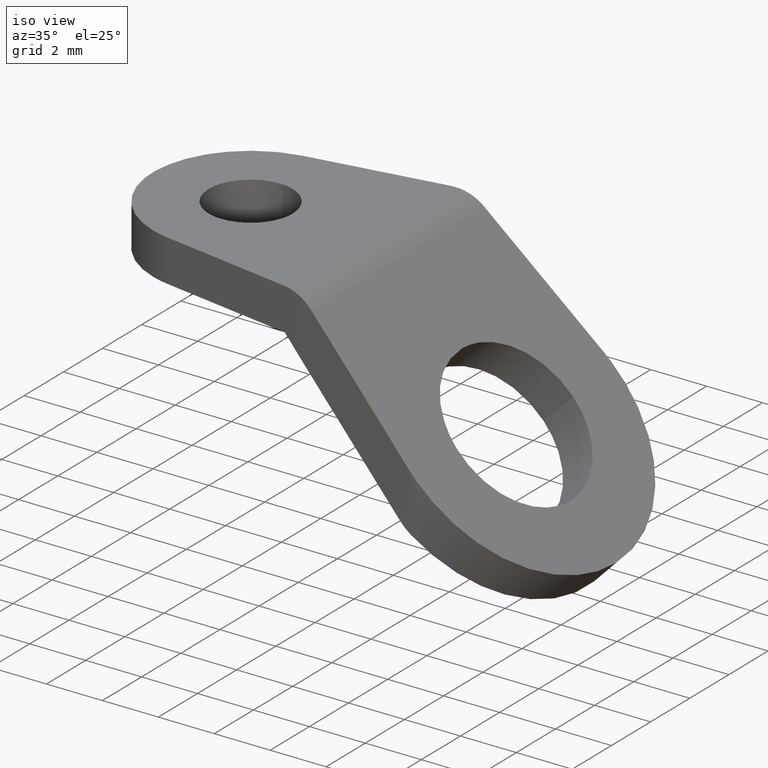
[diagram: clean part render]
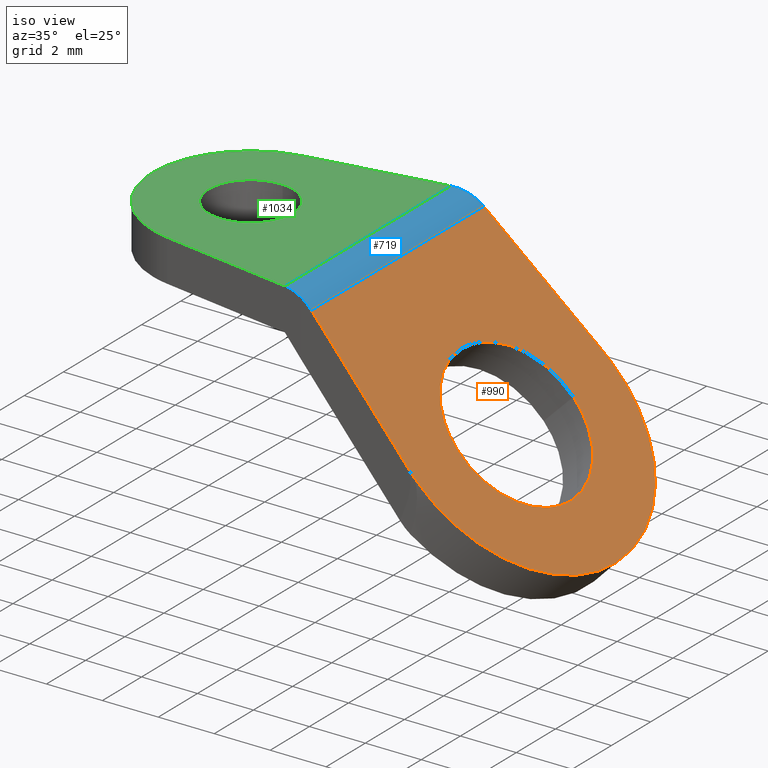
[diagram: same view with three faces highlighted in distinct colors, each labeled with its STEP entity id]
A machine part, iso view with three faces highlighted in distinct colors.
Their STEP definitions:

[orange] entity #990 — the highlighted face is a freeform B-spline surface patch.
#70=CARTESIAN_POINT('',(12.766167338002010,-2.730776364142925,-4.452458822055986));
#71=VERTEX_POINT('',#70);
#72=CARTESIAN_POINT('',(14.940232855966521,0.0,-6.626524060512137));
#73=VERTEX_POINT('',#72);
#74=CARTESIAN_POINT('',(12.766167338002019,-2.730776364142925,-4.452458822055986));
#75=CARTESIAN_POINT('',(12.880525690513572,-2.750000000000001,-4.566817159865109));
#76=CARTESIAN_POINT('',(12.995689082703541,-2.750000000000000,-4.681980537249110));
#77=CARTESIAN_POINT('',(14.940232855966512,-2.750000000000000,-6.626524060512138));
#78=CARTESIAN_POINT('',(14.940232855966521,0.0,-6.626524060512137));
#86=(BOUNDED_CURVE()B_SPLINE_CURVE(2,(#74,#75,#76,#77,#78),.UNSPECIFIED.,.F.,.U.)B_SPLINE_CURVE_WITH_KNOTS((3,2,3),(0.729562560280352,0.750000000000000,1.0),.UNSPECIFIED.)CURVE()GEOMETRIC_REPRESENTATION_ITEM()RATIONAL_B_SPLINE_CURVE((0.956026924250334,0.976056049984825,1.0,0.707106781186548,1.0))REPRESENTATION_ITEM(''));
#87=EDGE_CURVE('',#71,#73,#86,.T.);
#89=CARTESIAN_POINT('',(13.114397691125070,2.744870950733273,-4.800689130408792));
#90=VERTEX_POINT('',#89);
#91=CARTESIAN_POINT('',(14.940232855966521,0.0,-6.626524060512137));
#92=CARTESIAN_POINT('',(14.940232855966514,2.586945621895740,-6.626524060512138));
#93=CARTESIAN_POINT('',(13.114397691125070,2.744870950733273,-4.800689130408792));
#101=(BOUNDED_CURVE()B_SPLINE_CURVE(2,(#91,#92,#93),.UNSPECIFIED.,.F.,.U.)B_SPLINE_CURVE_WITH_KNOTS((3,3),(0.0,0.239333224406841),.UNSPECIFIED.)CURVE()GEOMETRIC_REPRESENTATION_ITEM()RATIONAL_B_SPLINE_CURVE((1.0,0.719603686137912,0.976072603543073))REPRESENTATION_ITEM(''));
#102=EDGE_CURVE('',#73,#90,#101,.T.);
#169=CARTESIAN_POINT('',(11.051145309440560,0.0,-2.737437013986083));
#170=VERTEX_POINT('',#169);
#171=CARTESIAN_POINT('',(11.051145309440560,0.0,-2.737437013986083));
#172=CARTESIAN_POINT('',(11.051145309440562,-2.442481209140467,-2.737437013986082));
#173=CARTESIAN_POINT('',(12.766167338002019,-2.730776364142925,-4.452458822055986));
#181=(BOUNDED_CURVE()B_SPLINE_CURVE(2,(#171,#172,#173),.UNSPECIFIED.,.F.,.U.)B_SPLINE_CURVE_WITH_KNOTS((3,3),(0.500000000000000,0.729562560280352),.UNSPECIFIED.)CURVE()GEOMETRIC_REPRESENTATION_ITEM()RATIONAL_B_SPLINE_CURVE((1.0,0.731050731201722,0.956026924250334))REPRESENTATION_ITEM(''));
#182=EDGE_CURVE('',#170,#71,#181,.T.);
#216=CARTESIAN_POINT('',(13.114397691125070,2.744870950733273,-4.800689130408792));
#217=CARTESIAN_POINT('',(13.055098789698699,2.750000000000000,-4.741390236606266));
#218=CARTESIAN_POINT('',(12.995689082703541,2.750000000000000,-4.681980537249110));
#219=CARTESIAN_POINT('',(11.051145309440562,2.750000000000000,-2.737437013986082));
#220=CARTESIAN_POINT('',(11.051145309440560,0.0,-2.737437013986083));
#228=(BOUNDED_CURVE()B_SPLINE_CURVE(2,(#216,#217,#218,#219,#220),.UNSPECIFIED.,.F.,.U.)B_SPLINE_CURVE_WITH_KNOTS((3,2,3),(0.239333224406841,0.250000000000000,0.500000000000000),.UNSPECIFIED.)CURVE()GEOMETRIC_REPRESENTATION_ITEM()RATIONAL_B_SPLINE_CURVE((0.976072603543073,0.987503095048635,1.0,0.707106781186548,1.0))REPRESENTATION_ITEM(''));
#229=EDGE_CURVE('',#90,#170,#228,.T.);
#471=CARTESIAN_POINT('',(12.869188220313299,-4.996798481802500,-4.555479691122420));
#472=VERTEX_POINT('',#471);
#537=CARTESIAN_POINT('',(12.631954559563800,-4.973469053625591,-4.318246060872835));
#538=VERTEX_POINT('',#537);
#539=CARTESIAN_POINT('',(12.631954559563800,-4.973469053625606,-4.318246060872834));
#540=CARTESIAN_POINT('',(12.750293838427002,-4.990778531242915,-4.436585324521778));
#541=CARTESIAN_POINT('',(12.869188220313291,-4.996798481802498,-4.555479691122424));
#549=(BOUNDED_CURVE()B_SPLINE_CURVE(2,(#539,#540,#541),.UNSPECIFIED.,.F.,.U.)CURVE()GEOMETRIC_REPRESENTATION_ITEM()QUASI_UNIFORM_CURVE()RATIONAL_B_SPLINE_CURVE((1.0,0.999434320666781,1.0))REPRESENTATION_ITEM(''));
#550=EDGE_CURVE('',#538,#472,#549,.T.);
#635=CARTESIAN_POINT('',(8.753047760038342,4.406101641292005,-0.439339760038375));
#636=VERTEX_POINT('',#635);
#637=CARTESIAN_POINT('',(8.753047760038342,-4.406101641292151,-0.439339760038375));
#638=VERTEX_POINT('',#637);
#639=CARTESIAN_POINT('',(8.753047760038342,4.406101641292005,-0.439339760038375));
#640=CARTESIAN_POINT('',(8.753047760038342,-4.406101641292151,-0.439339760038375));
#641=QUASI_UNIFORM_CURVE('',1,(#639,#640),.UNSPECIFIED.,.F.,.U.);
#642=EDGE_CURVE('',#636,#638,#641,.T.);
#831=CARTESIAN_POINT('',(12.869188220313299,4.996798481802500,-4.555479691122420));
#832=VERTEX_POINT('',#831);
#882=CARTESIAN_POINT('',(12.631954558184900,4.973469053423909,-4.318246059493920));
#883=VERTEX_POINT('',#882);
#894=CARTESIAN_POINT('',(12.869188220313291,4.996798481802499,-4.555479691122426));
#895=CARTESIAN_POINT('',(12.750293837733553,4.990778531207805,-4.436585323828322));
#896=CARTESIAN_POINT('',(12.631954558184891,4.973469053423913,-4.318246059493929));
#904=(BOUNDED_CURVE()B_SPLINE_CURVE(2,(#894,#895,#896),.UNSPECIFIED.,.F.,.U.)CURVE()GEOMETRIC_REPRESENTATION_ITEM()QUASI_UNIFORM_CURVE()RATIONAL_B_SPLINE_CURVE((1.0,0.999434320660188,1.0))REPRESENTATION_ITEM(''));
#905=EDGE_CURVE('',#832,#883,#904,.T.);
#916=CARTESIAN_POINT('',(12.631954558184900,4.973469053423909,-4.318246059493920));
#917=CARTESIAN_POINT('',(8.753047760038342,4.406101641292005,-0.439339760038375));
#918=QUASI_UNIFORM_CURVE('',1,(#916,#917),.UNSPECIFIED.,.F.,.U.);
#919=EDGE_CURVE('',#883,#636,#918,.T.);
#945=CARTESIAN_POINT('',(8.753047760038342,-4.406101641292151,-0.439339760038375));
#946=CARTESIAN_POINT('',(12.631954559563800,-4.973469053625591,-4.318246060872835));
#947=QUASI_UNIFORM_CURVE('',1,(#945,#946),.UNSPECIFIED.,.F.,.U.);
#948=EDGE_CURVE('',#638,#538,#947,.T.);
#955=CARTESIAN_POINT('',(8.364527984109158,-5.495978724577777,-0.050820034059183));
#956=CARTESIAN_POINT('',(16.919743270007359,-5.495978724577777,-8.606034220057550));
#957=CARTESIAN_POINT('',(8.364527984109158,5.495978903277218,-0.050820034059183));
#958=CARTESIAN_POINT('',(16.919743270007359,5.495978903277218,-8.606034220057550));
#959=B_SPLINE_SURFACE_WITH_KNOTS('',1,1,((#955,#957),(#956,#958)),.UNSPECIFIED.,.F.,.F.,.U.,(2,2),(2,2),(0.0,12.098900708592240),(0.0,10.991957627854990),.UNSPECIFIED.);
#960=ORIENTED_EDGE('',*,*,#919,.T.);
#961=ORIENTED_EDGE('',*,*,#642,.T.);
#962=ORIENTED_EDGE('',*,*,#948,.T.);
#963=ORIENTED_EDGE('',*,*,#550,.T.);
#964=CARTESIAN_POINT('',(12.869188220313291,-4.996798481802498,-4.555479691122424));
#965=CARTESIAN_POINT('',(14.965713834810872,-5.102951357539262,-6.652005036080530));
#966=CARTESIAN_POINT('',(16.036246123593202,-2.551475678769632,-7.722537187230058));
#967=CARTESIAN_POINT('',(17.106778412375533,-1.301043E-015,-8.793069338379585));
#968=CARTESIAN_POINT('',(16.036246123593202,2.551475678769630,-7.722537187230059));
#969=CARTESIAN_POINT('',(14.965713834810872,5.102951357539262,-6.652005036080532));
#970=CARTESIAN_POINT('',(12.869188220313291,4.996798481802499,-4.555479691122426));
#978=(BOUNDED_CURVE()B_SPLINE_CURVE(2,(#964,#965,#966,#967,#968,#969,#970),.UNSPECIFIED.,.F.,.U.)B_SPLINE_CURVE_WITH_KNOTS((3,2,2,3),(0.0,0.333333333333333,0.666666666666667,1.0),.UNSPECIFIED.)CURVE()GEOMETRIC_REPRESENTATION_ITEM()RATIONAL_B_SPLINE_CURVE((1.0,0.859999345596194,1.0,0.859999345596194,1.0,0.859999345596194,1.0))REPRESENTATION_ITEM(''));
#979=EDGE_CURVE('',#472,#832,#978,.T.);
#980=ORIENTED_EDGE('',*,*,#979,.T.);
#981=ORIENTED_EDGE('',*,*,#905,.T.);
#982=EDGE_LOOP('',(#960,#961,#962,#963,#980,#981));
#983=FACE_OUTER_BOUND('',#982,.T.);
#984=ORIENTED_EDGE('',*,*,#102,.F.);
#985=ORIENTED_EDGE('',*,*,#87,.F.);
#986=ORIENTED_EDGE('',*,*,#182,.F.);
#987=ORIENTED_EDGE('',*,*,#229,.F.);
#988=EDGE_LOOP('',(#984,#985,#986,#987));
#989=FACE_BOUND('',#988,.T.);
#990=ADVANCED_FACE('',(#983,#989),#959,.T.);

[blue] entity #719 — the highlighted face is a freeform B-spline surface patch.
#597=CARTESIAN_POINT('',(8.300141690605091,4.339600362831785,-0.128637526415259));
#598=VERTEX_POINT('',#597);
#604=CARTESIAN_POINT('',(8.327313075662550,4.343829457902276,-0.141004153050684));
#605=VERTEX_POINT('',#604);
#606=CARTESIAN_POINT('',(8.300141690605081,4.339600362831790,-0.128637526415259));
#607=CARTESIAN_POINT('',(8.309227372850312,4.341099929424724,-0.132664076757740));
#608=CARTESIAN_POINT('',(8.318286318141817,4.342509114738437,-0.136786834936038));
#609=CARTESIAN_POINT('',(8.327313075662550,4.343829457902276,-0.141004153050684));
#610=B_SPLINE_CURVE_WITH_KNOTS('',3,(#606,#607,#608,#609),.UNSPECIFIED.,.F.,.U.,(4,4),(0.0,0.000030151332730),.UNSPECIFIED.);
#611=EDGE_CURVE('',#598,#605,#610,.T.);
#621=CARTESIAN_POINT('',(8.780449212958759,-4.626406723356754,-0.467468136459377));
#622=CARTESIAN_POINT('',(8.780449212958759,4.631914350408223,-0.467468136459377));
#623=CARTESIAN_POINT('',(8.313225542076552,-4.626406723356754,0.024882881977113));
#624=CARTESIAN_POINT('',(8.313225542076552,4.631914350408221,0.024882881977113));
#625=CARTESIAN_POINT('',(7.634968654260773,-4.626406723356753,-0.001099383485115));
#626=CARTESIAN_POINT('',(7.634968654260773,4.631914350408222,-0.001099383485115));
#634=(BOUNDED_SURFACE()B_SPLINE_SURFACE(1,2,((#621,#623,#625),(#622,#624,#626)),.UNSPECIFIED.,.F.,.F.,.U.)B_SPLINE_SURFACE_WITH_KNOTS((2,2),(3,3),(0.0,9.258321073764977),(0.0,0.953457596509065),.UNSPECIFIED.)GEOMETRIC_REPRESENTATION_ITEM()RATIONAL_B_SPLINE_SURFACE(((1.0,0.907119199351604,0.991354208599323),(1.0,0.907119199351604,0.991354208599323)))REPRESENTATION_ITEM('')SURFACE());
#635=CARTESIAN_POINT('',(8.753047760038342,4.406101641292005,-0.439339760038375));
#636=VERTEX_POINT('',#635);
#637=CARTESIAN_POINT('',(8.753047760038342,-4.406101641292151,-0.439339760038375));
#638=VERTEX_POINT('',#637);
#639=CARTESIAN_POINT('',(8.753047760038342,4.406101641292005,-0.439339760038375));
#640=CARTESIAN_POINT('',(8.753047760038342,-4.406101641292151,-0.439339760038375));
#641=QUASI_UNIFORM_CURVE('',1,(#639,#640),.UNSPECIFIED.,.F.,.U.);
#642=EDGE_CURVE('',#636,#638,#641,.T.);
#643=ORIENTED_EDGE('',*,*,#642,.F.);
#644=CARTESIAN_POINT('',(8.327313075662540,4.343829457902276,-0.141004153050684));
#645=CARTESIAN_POINT('',(8.566426258357696,4.378804525686051,-0.252718282350700));
#646=CARTESIAN_POINT('',(8.753047760038342,4.406101641292005,-0.439339760038375));
#654=(BOUNDED_CURVE()B_SPLINE_CURVE(2,(#644,#645,#646),.UNSPECIFIED.,.F.,.U.)CURVE()GEOMETRIC_REPRESENTATION_ITEM()QUASI_UNIFORM_CURVE()RATIONAL_B_SPLINE_CURVE((1.0,0.984871443619967,1.0))REPRESENTATION_ITEM(''));
#655=EDGE_CURVE('',#605,#636,#654,.T.);
#656=ORIENTED_EDGE('',*,*,#655,.F.);
#657=ORIENTED_EDGE('',*,*,#611,.F.);
#658=CARTESIAN_POINT('',(7.692387656440331,4.239292249279580,0.0));
#659=VERTEX_POINT('',#658);
#660=CARTESIAN_POINT('',(7.692387656440331,4.239292249279582,0.0));
#661=CARTESIAN_POINT('',(8.009878415490686,4.291693216316133,0.0));
#662=CARTESIAN_POINT('',(8.300141690605090,4.339600362831787,-0.128637526415263));
#670=(BOUNDED_CURVE()B_SPLINE_CURVE(2,(#660,#661,#662),.UNSPECIFIED.,.F.,.U.)CURVE()GEOMETRIC_REPRESENTATION_ITEM()QUASI_UNIFORM_CURVE()RATIONAL_B_SPLINE_CURVE((1.0,0.978325520738462,1.0))REPRESENTATION_ITEM(''));
#671=EDGE_CURVE('',#659,#598,#670,.T.);
#672=ORIENTED_EDGE('',*,*,#671,.F.);
#673=CARTESIAN_POINT('',(7.692387656440331,-4.239292249279741,0.0));
#674=VERTEX_POINT('',#673);
#675=CARTESIAN_POINT('',(7.692387656440331,-4.239292249279741,0.0));
#676=CARTESIAN_POINT('',(7.692387656440331,4.239292249279580,0.0));
#677=QUASI_UNIFORM_CURVE('',1,(#675,#676),.UNSPECIFIED.,.F.,.U.);
#678=EDGE_CURVE('',#674,#659,#677,.T.);
#679=ORIENTED_EDGE('',*,*,#678,.F.);
#680=CARTESIAN_POINT('',(8.300141690596350,-4.339600362830510,-0.128637526411387));
#681=VERTEX_POINT('',#680);
#682=CARTESIAN_POINT('',(8.300141690596343,-4.339600362830510,-0.128637526411387));
#683=CARTESIAN_POINT('',(8.009878415485687,-4.291693216315471,0.0));
#684=CARTESIAN_POINT('',(7.692387656440320,-4.239292249279741,0.0));
#692=(BOUNDED_CURVE()B_SPLINE_CURVE(2,(#682,#683,#684),.UNSPECIFIED.,.F.,.U.)CURVE()GEOMETRIC_REPRESENTATION_ITEM()QUASI_UNIFORM_CURVE()RATIONAL_B_SPLINE_CURVE((1.0,0.978325520739153,1.0))REPRESENTATION_ITEM(''));
#693=EDGE_CURVE('',#681,#674,#692,.T.);
#694=ORIENTED_EDGE('',*,*,#693,.F.);
#695=CARTESIAN_POINT('',(8.327313075653819,-4.343829457901000,-0.141004153046608));
#696=VERTEX_POINT('',#695);
#697=CARTESIAN_POINT('',(8.300141690596350,-4.339600362830510,-0.128637526411387));
#698=CARTESIAN_POINT('',(8.309227372841582,-4.341099929423444,-0.132664076753800));
#699=CARTESIAN_POINT('',(8.318286318133087,-4.342509114737161,-0.136786834932032));
#700=CARTESIAN_POINT('',(8.327313075653819,-4.343829457901000,-0.141004153046608));
#701=B_SPLINE_CURVE_WITH_KNOTS('',3,(#697,#698,#699,#700),.UNSPECIFIED.,.F.,.U.,(4,4),(0.0,0.000030151332730),.UNSPECIFIED.);
#702=EDGE_CURVE('',#681,#696,#701,.T.);
#703=ORIENTED_EDGE('',*,*,#702,.T.);
#704=CARTESIAN_POINT('',(8.753047760038342,-4.406101641292151,-0.439339760038375));
#705=CARTESIAN_POINT('',(8.566426258354188,-4.378804525685538,-0.252718282347191));
#706=CARTESIAN_POINT('',(8.327313075653818,-4.343829457900999,-0.141004153046608));
#714=(BOUNDED_CURVE()B_SPLINE_CURVE(2,(#704,#705,#706),.UNSPECIFIED.,.F.,.U.)CURVE()GEOMETRIC_REPRESENTATION_ITEM()QUASI_UNIFORM_CURVE()RATIONAL_B_SPLINE_CURVE((1.0,0.984871443619411,1.0))REPRESENTATION_ITEM(''));
#715=EDGE_CURVE('',#638,#696,#714,.T.);
#716=ORIENTED_EDGE('',*,*,#715,.F.);
#717=EDGE_LOOP('',(#643,#656,#657,#672,#679,#694,#703,#716));
#718=FACE_OUTER_BOUND('',#717,.T.);
#719=ADVANCED_FACE('',(#718),#634,.T.);

[green] entity #1034 — the highlighted face is a freeform B-spline surface patch.
#256=CARTESIAN_POINT('',(3.322948647998651,-1.489514289543573,3.904214E-017));
#257=VERTEX_POINT('',#256);
#258=CARTESIAN_POINT('',(5.0,0.0,0.0));
#259=VERTEX_POINT('',#258);
#260=CARTESIAN_POINT('',(3.322948647998651,-1.489514289543573,3.904214E-017));
#261=CARTESIAN_POINT('',(3.411163820505752,-1.500000000000000,0.0));
#262=CARTESIAN_POINT('',(3.500000000000000,-1.500000000000000,0.0));
#263=CARTESIAN_POINT('',(5.000000000000001,-1.500000000000000,0.0));
#264=CARTESIAN_POINT('',(5.0,0.0,0.0));
#272=(BOUNDED_CURVE()B_SPLINE_CURVE(2,(#260,#261,#262,#263,#264),.UNSPECIFIED.,.F.,.U.)B_SPLINE_CURVE_WITH_KNOTS((3,2,3),(0.229562473511965,0.250000000000000,0.500000000000000),.UNSPECIFIED.)CURVE()GEOMETRIC_REPRESENTATION_ITEM()RATIONAL_B_SPLINE_CURVE((0.956026754180675,0.976055948329338,1.0,0.707106781186548,1.0))REPRESENTATION_ITEM(''));
#273=EDGE_CURVE('',#257,#259,#272,.T.);
#275=CARTESIAN_POINT('',(3.591572391520060,1.497202223185339,-1.793704E-015));
#276=VERTEX_POINT('',#275);
#277=CARTESIAN_POINT('',(5.0,0.0,0.0));
#278=CARTESIAN_POINT('',(5.0,1.411059889319680,0.0));
#279=CARTESIAN_POINT('',(3.591572391520061,1.497202223185339,-1.793704E-015));
#287=(BOUNDED_CURVE()B_SPLINE_CURVE(2,(#277,#278,#279),.UNSPECIFIED.,.F.,.U.)B_SPLINE_CURVE_WITH_KNOTS((3,3),(0.500000000000000,0.739333058537563),.UNSPECIFIED.)CURVE()GEOMETRIC_REPRESENTATION_ITEM()RATIONAL_B_SPLINE_CURVE((1.0,0.719603880465859,0.976072248053079))REPRESENTATION_ITEM(''));
#288=EDGE_CURVE('',#259,#276,#287,.T.);
#355=CARTESIAN_POINT('',(2.0,0.0,0.0));
#356=VERTEX_POINT('',#355);
#357=CARTESIAN_POINT('',(2.0,0.0,0.0));
#358=CARTESIAN_POINT('',(2.0,-1.332261788897848,0.0));
#359=CARTESIAN_POINT('',(3.322948647998651,-1.489514289543573,3.904214E-017));
#367=(BOUNDED_CURVE()B_SPLINE_CURVE(2,(#357,#358,#359),.UNSPECIFIED.,.F.,.U.)B_SPLINE_CURVE_WITH_KNOTS((3,3),(0.0,0.229562473511965),.UNSPECIFIED.)CURVE()GEOMETRIC_REPRESENTATION_ITEM()RATIONAL_B_SPLINE_CURVE((1.0,0.731050832857210,0.956026754180675))REPRESENTATION_ITEM(''));
#368=EDGE_CURVE('',#356,#257,#367,.T.);
#402=CARTESIAN_POINT('',(3.591572391520060,1.497202223185339,-1.793704E-015));
#403=CARTESIAN_POINT('',(3.545828725994248,1.500000000000000,0.0));
#404=CARTESIAN_POINT('',(3.500000000000000,1.500000000000000,0.0));
#405=CARTESIAN_POINT('',(2.000000000000000,1.500000000000000,0.0));
#406=CARTESIAN_POINT('',(2.0,0.0,0.0));
#414=(BOUNDED_CURVE()B_SPLINE_CURVE(2,(#402,#403,#404,#405,#406),.UNSPECIFIED.,.F.,.U.)B_SPLINE_CURVE_WITH_KNOTS((3,2,3),(0.739333058537563,0.750000000000000,1.0),.UNSPECIFIED.)CURVE()GEOMETRIC_REPRESENTATION_ITEM()RATIONAL_B_SPLINE_CURVE((0.976072248053079,0.987502900720689,1.0,0.707106781186548,1.0))REPRESENTATION_ITEM(''));
#415=EDGE_CURVE('',#276,#356,#414,.T.);
#658=CARTESIAN_POINT('',(7.692387656440331,4.239292249279580,0.0));
#659=VERTEX_POINT('',#658);
#673=CARTESIAN_POINT('',(7.692387656440331,-4.239292249279741,0.0));
#674=VERTEX_POINT('',#673);
#675=CARTESIAN_POINT('',(7.692387656440331,-4.239292249279741,0.0));
#676=CARTESIAN_POINT('',(7.692387656440331,4.239292249279580,0.0));
#677=QUASI_UNIFORM_CURVE('',1,(#675,#676),.UNSPECIFIED.,.F.,.U.);
#678=EDGE_CURVE('',#674,#659,#677,.T.);
#991=CARTESIAN_POINT('',(-0.384232194438773,4.662797418667132,0.0));
#992=CARTESIAN_POINT('',(8.076622489788493,4.662797418667132,0.0));
#993=CARTESIAN_POINT('',(-0.384232194438773,-4.662797115449481,0.0));
#994=CARTESIAN_POINT('',(8.076622489788493,-4.662797115449481,0.0));
#995=B_SPLINE_SURFACE_WITH_KNOTS('',1,1,((#991,#993),(#992,#994)),.UNSPECIFIED.,.F.,.F.,.U.,(2,2),(2,2),(0.0,8.460854684227266),(0.0,9.325594534116615),.UNSPECIFIED.);
#996=CARTESIAN_POINT('',(2.930046000000000,-3.453281000000000,0.0));
#997=VERTEX_POINT('',#996);
#998=CARTESIAN_POINT('',(7.692387656440331,-4.239292249279741,0.0));
#999=CARTESIAN_POINT('',(2.930046000000000,-3.453281000000000,0.0));
#1000=QUASI_UNIFORM_CURVE('',1,(#998,#999),.UNSPECIFIED.,.F.,.U.);
#1001=EDGE_CURVE('',#674,#997,#1000,.T.);
#1002=ORIENTED_EDGE('',*,*,#1001,.F.);
#1003=ORIENTED_EDGE('',*,*,#678,.T.);
#1004=CARTESIAN_POINT('',(2.930047951796130,3.453281322138420,0.0));
#1005=VERTEX_POINT('',#1004);
#1006=CARTESIAN_POINT('',(2.930047951796130,3.453281322138420,0.0));
#1007=CARTESIAN_POINT('',(7.692387656440331,4.239292249279580,0.0));
#1008=QUASI_UNIFORM_CURVE('',1,(#1006,#1007),.UNSPECIFIED.,.F.,.U.);
#1009=EDGE_CURVE('',#1005,#659,#1008,.T.);
#1010=ORIENTED_EDGE('',*,*,#1009,.F.);
#1011=CARTESIAN_POINT('',(2.930047951796130,3.453281322138419,0.0));
#1012=CARTESIAN_POINT('',(0.000003271817115,2.969685594343231,0.0));
#1013=CARTESIAN_POINT('',(0.000002432583590,0.000000989100716,0.0));
#1014=CARTESIAN_POINT('',(0.000001593350063,-2.969683616141795,0.0));
#1015=CARTESIAN_POINT('',(2.930046000000000,-3.453281000000000,0.0));
#1023=(BOUNDED_CURVE()B_SPLINE_CURVE(2,(#1011,#1012,#1013,#1014,#1015),.UNSPECIFIED.,.F.,.U.)B_SPLINE_CURVE_WITH_KNOTS((3,2,3),(0.0,0.500000000000000,1.0),.UNSPECIFIED.)CURVE()GEOMETRIC_REPRESENTATION_ITEM()RATIONAL_B_SPLINE_CURVE((1.0,0.762510464254694,1.0,0.762510464254694,1.0))REPRESENTATION_ITEM(''));
#1024=EDGE_CURVE('',#1005,#997,#1023,.T.);
#1025=ORIENTED_EDGE('',*,*,#1024,.T.);
#1026=EDGE_LOOP('',(#1002,#1003,#1010,#1025));
#1027=FACE_OUTER_BOUND('',#1026,.T.);
#1028=ORIENTED_EDGE('',*,*,#288,.F.);
#1029=ORIENTED_EDGE('',*,*,#273,.F.);
#1030=ORIENTED_EDGE('',*,*,#368,.F.);
#1031=ORIENTED_EDGE('',*,*,#415,.F.);
#1032=EDGE_LOOP('',(#1028,#1029,#1030,#1031));
#1033=FACE_BOUND('',#1032,.T.);
#1034=ADVANCED_FACE('',(#1027,#1033),#995,.F.);